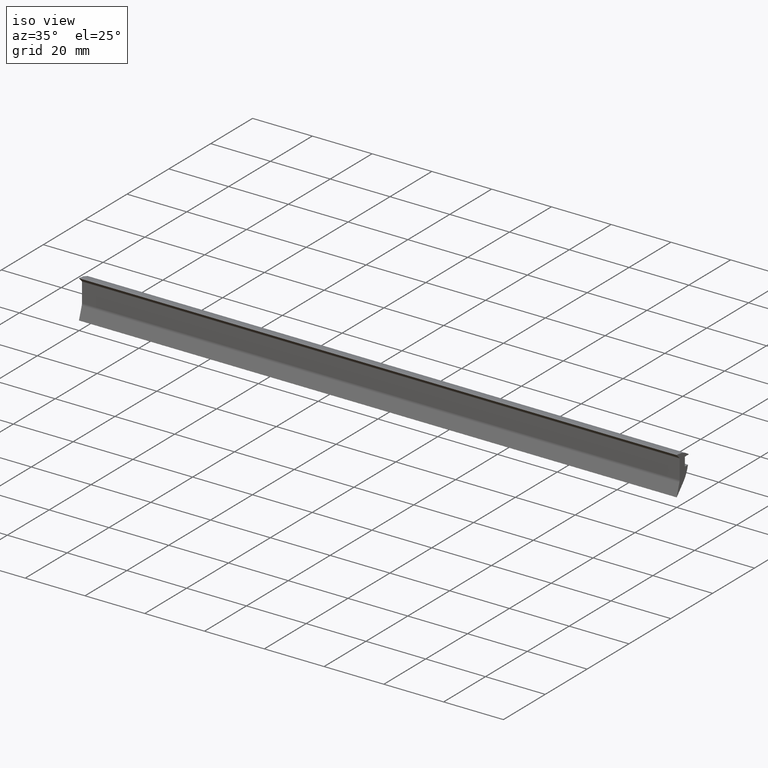
[diagram: clean part render]
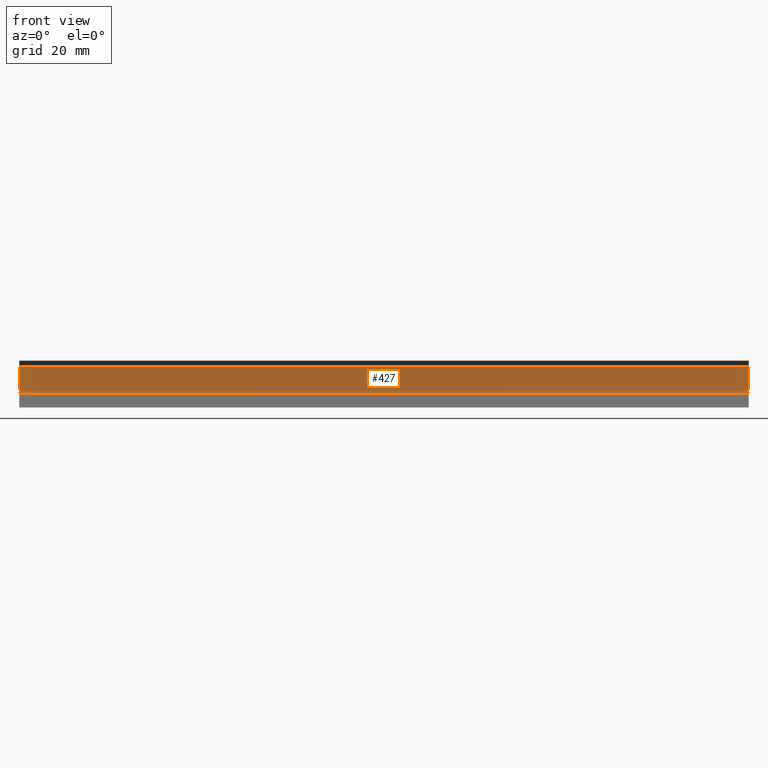
[diagram: tour spotlight — one face highlighted and labeled with its STEP entity id]
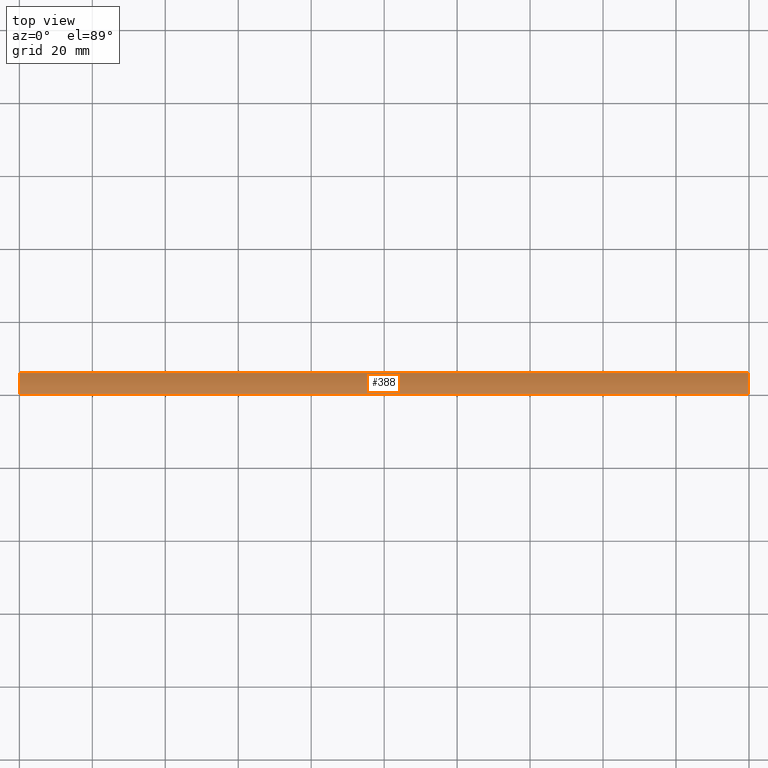
[diagram: tour spotlight — one face highlighted and labeled with its STEP entity id]
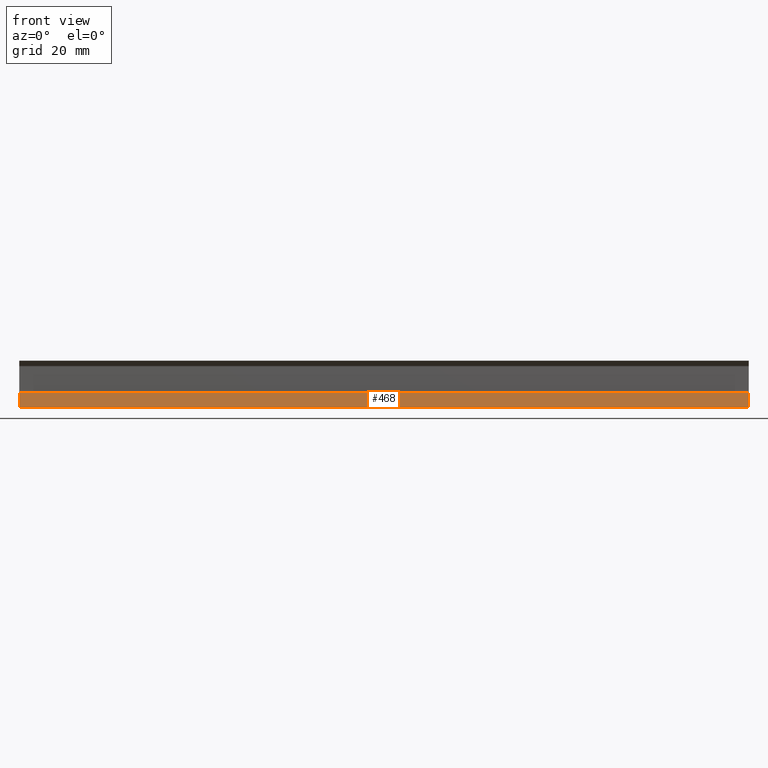
[diagram: tour spotlight — one face highlighted and labeled with its STEP entity id]
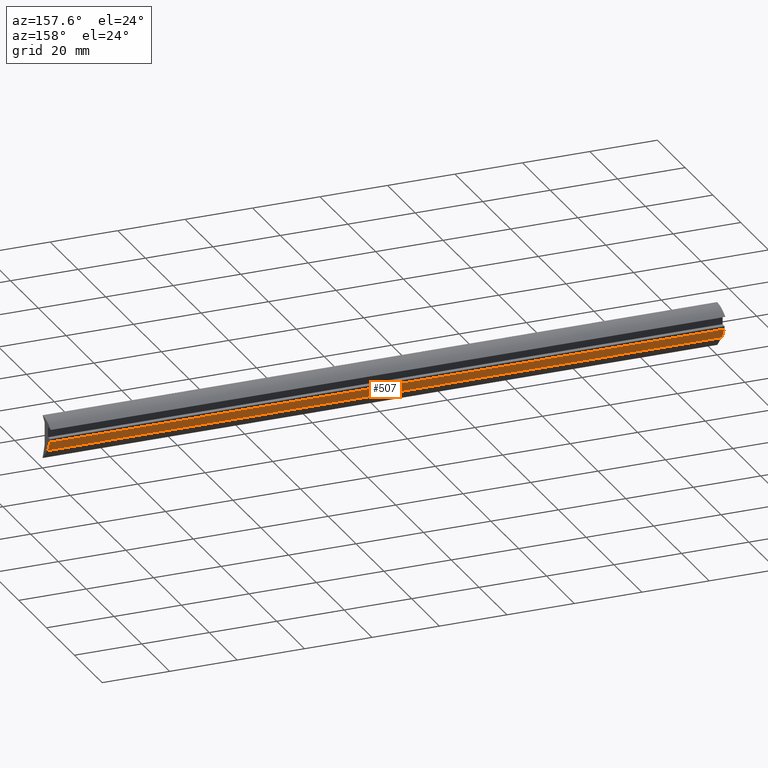
[diagram: tour spotlight — one face highlighted and labeled with its STEP entity id]
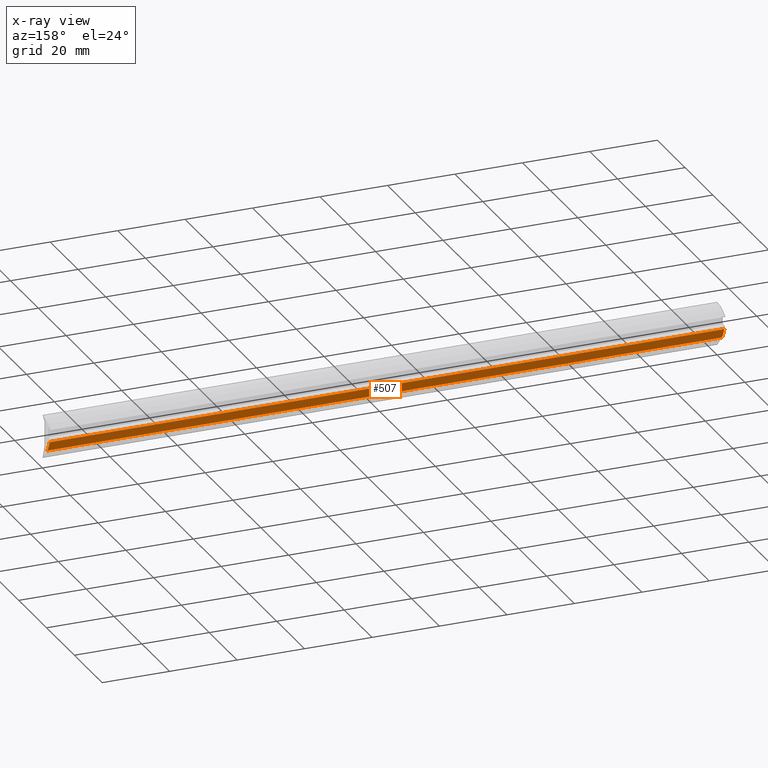
[diagram: x-ray of the same camera — body ghosted, this tour face saturated]
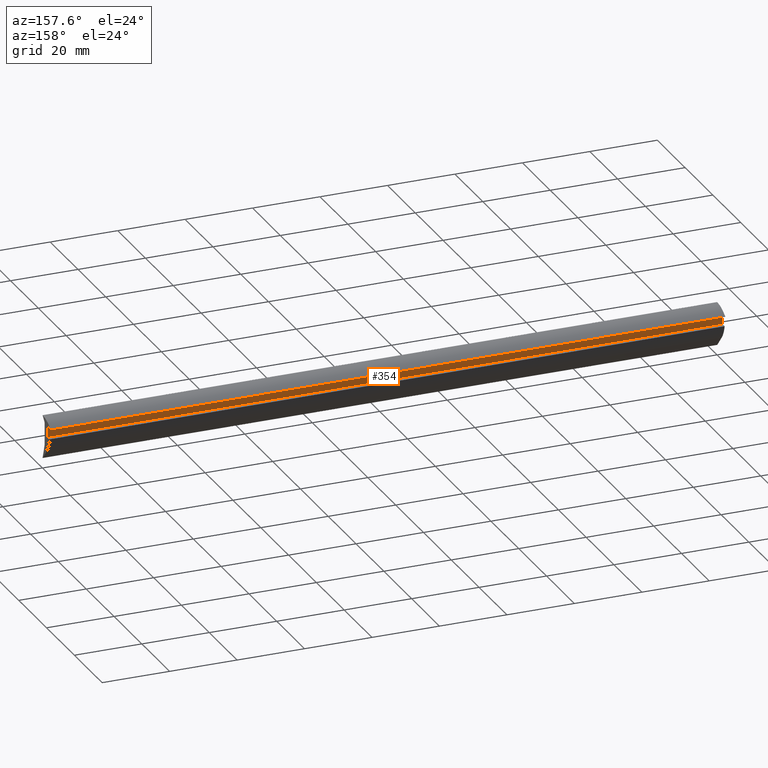
[diagram: tour spotlight — one face highlighted and labeled with its STEP entity id]
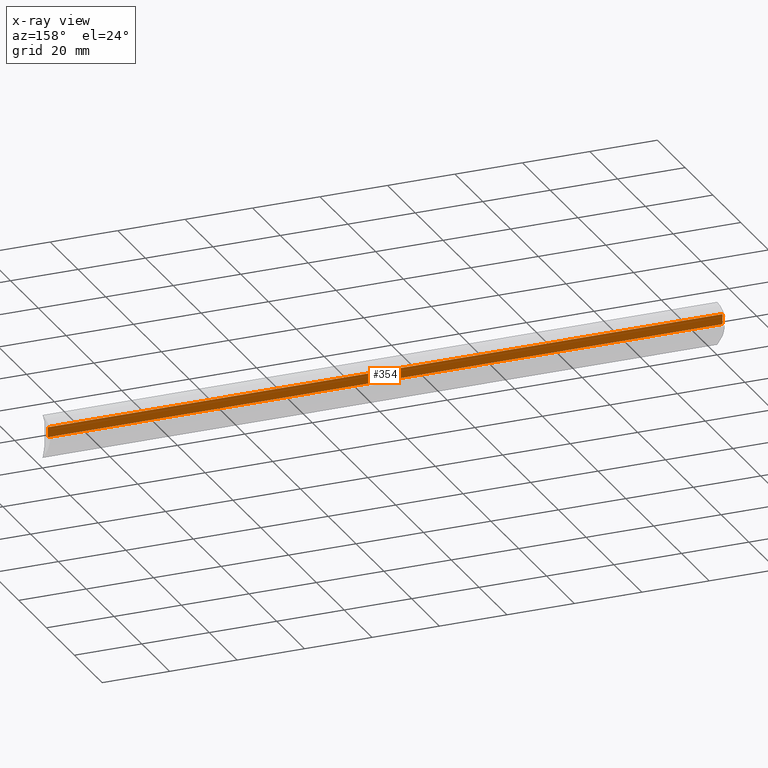
[diagram: x-ray of the same camera — body ghosted, this tour face saturated]
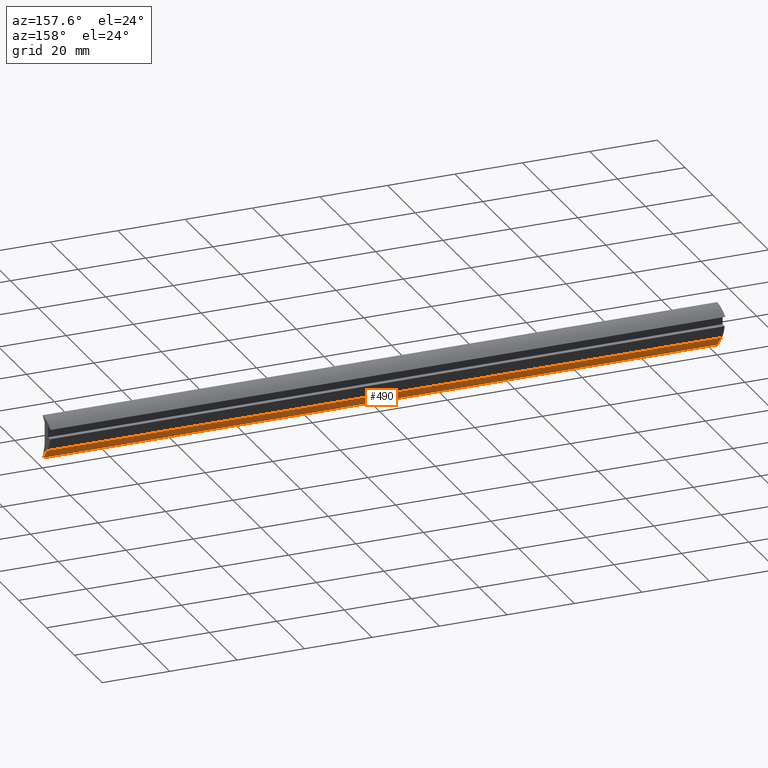
[diagram: tour spotlight — one face highlighted and labeled with its STEP entity id]
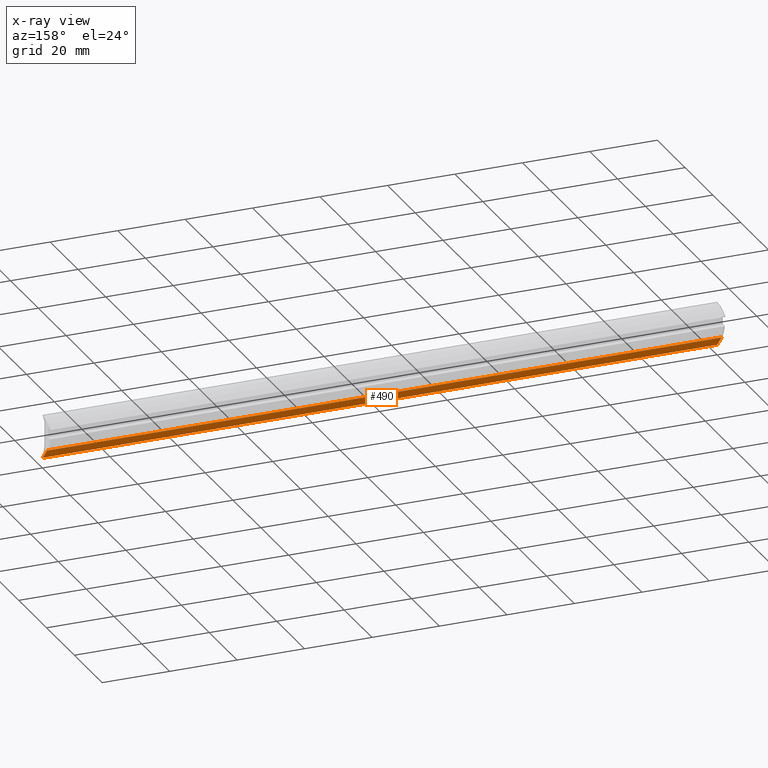
[diagram: x-ray of the same camera — body ghosted, this tour face saturated]
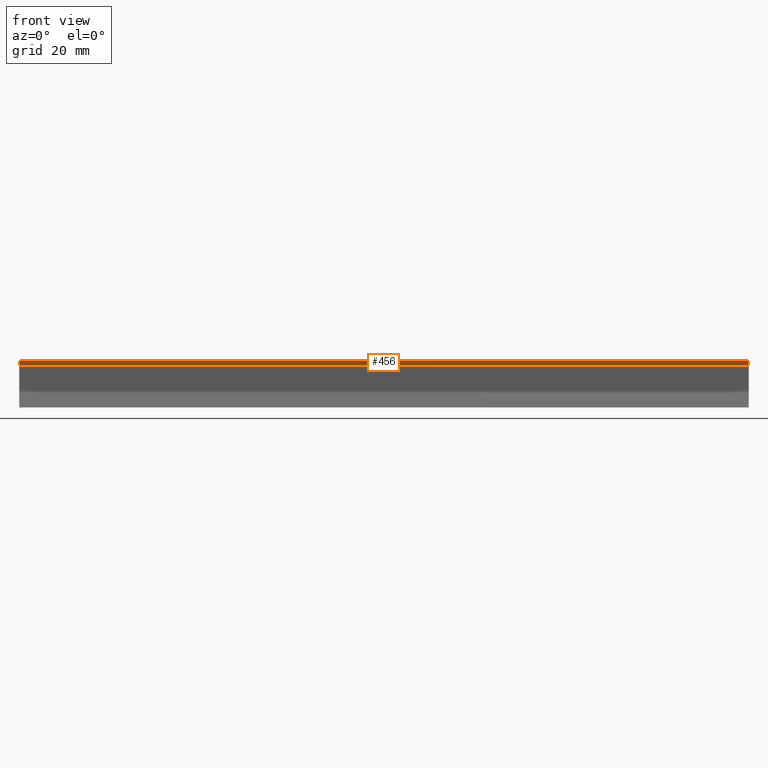
[diagram: tour spotlight — one face highlighted and labeled with its STEP entity id]
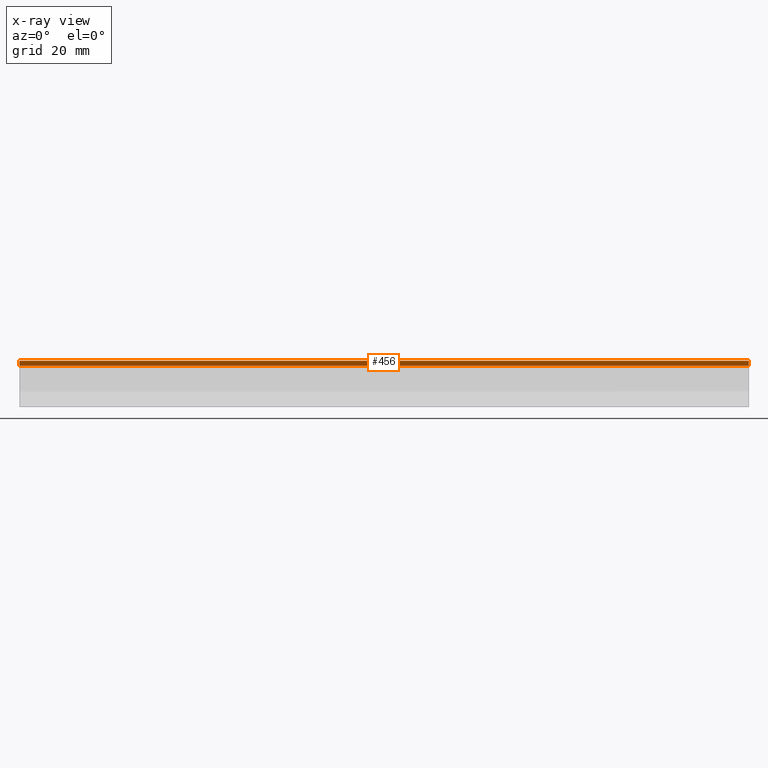
[diagram: x-ray of the same camera — body ghosted, this tour face saturated]
A machine part: a face-by-face anatomy tour. The part has 18 B-rep faces; the first image is the clean iso view, then the 7 largest visible faces are spotlighted one at a time (largest first), each with its STEP entity span.

Face 1 — front view, entity #427. In plain terms, the highlighted planar face has unit normal (0, -1, 0).
Definition (entity closure, byte-faithful):
#109=CARTESIAN_POINT('',(199.954953097465960,1.424986818330675,11.112900576339499));
#110=VERTEX_POINT('',#109);
#118=CARTESIAN_POINT('',(199.954953097465960,1.424986818330675,4.644562677862806));
#119=VERTEX_POINT('',#118);
#120=CARTESIAN_POINT('',(199.954953097465960,1.424986818330675,4.644562677862806));
#121=DIRECTION('',(0.0,0.0,1.0));
#122=VECTOR('',#121,6.468337898476692);
#123=LINE('',#120,#122);
#124=EDGE_CURVE('',#119,#110,#123,.T.);
#289=CARTESIAN_POINT('',(-0.045046902534030,1.424986818330675,4.644562677862819));
#290=VERTEX_POINT('',#289);
#298=CARTESIAN_POINT('',(-0.045046902534030,1.424986818330675,11.112900576339511));
#299=VERTEX_POINT('',#298);
#300=CARTESIAN_POINT('',(-0.045046902534030,1.424986818330675,4.644562677862819));
#301=DIRECTION('',(0.0,0.0,1.0));
#302=VECTOR('',#301,6.468337898476690);
#303=LINE('',#300,#302);
#304=EDGE_CURVE('',#290,#299,#303,.T.);
#395=CARTESIAN_POINT('',(199.954953097465960,1.424986818330675,4.644562677862806));
#396=DIRECTION('',(-1.0,0.0,0.0));
#397=VECTOR('',#396,200.0);
#398=LINE('',#395,#397);
#399=EDGE_CURVE('',#119,#290,#398,.T.);
#411=CARTESIAN_POINT('',(-10.045046902534031,1.424986818330675,4.321145782938985));
#412=DIRECTION('',(0.0,-1.0,0.0));
#413=DIRECTION('',(1.0,0.0,0.0));
#414=AXIS2_PLACEMENT_3D('',#411,#412,#413);
#415=PLANE('',#414);
#416=ORIENTED_EDGE('',*,*,#124,.T.);
#417=CARTESIAN_POINT('',(199.954953097465960,1.424986818330675,11.112900576339499));
#418=DIRECTION('',(-1.0,0.0,0.0));
#419=VECTOR('',#418,200.0);
#420=LINE('',#417,#419);
#421=EDGE_CURVE('',#110,#299,#420,.T.);
#422=ORIENTED_EDGE('',*,*,#421,.T.);
#423=ORIENTED_EDGE('',*,*,#304,.F.);
#424=ORIENTED_EDGE('',*,*,#399,.F.);
#425=EDGE_LOOP('',(#416,#422,#423,#424));
#426=FACE_OUTER_BOUND('',#425,.T.);
#427=ADVANCED_FACE('',(#426),#415,.T.);

Face 2 — top view, entity #388. In plain terms, the highlighted cylindrical surface (partial cylindrical patch) has radius 10.0886 mm, axis along (-1, 0, 0).
Definition (entity closure, byte-faithful):
#7=CARTESIAN_POINT('',(199.954953097465960,0.048149271488415,12.818474437844795));
#8=VERTEX_POINT('',#7);
#18=CARTESIAN_POINT('',(-0.045046902534029,0.047221813609371,12.818483040366013));
#19=VERTEX_POINT('',#18);
#91=CARTESIAN_POINT('',(199.954953097465960,5.924986818330687,10.794373554709134));
#92=VERTEX_POINT('',#91);
#93=CARTESIAN_POINT('',(199.954953097465960,-0.138986082328844,2.731592794589620));
#94=DIRECTION('',(1.0,0.0,-6.123234E-017));
#95=DIRECTION('',(6.123234E-017,0.0,1.0));
#96=AXIS2_PLACEMENT_3D('',#93,#94,#95);
#97=CIRCLE('',#96,10.088617394156966);
#98=EDGE_CURVE('',#92,#8,#97,.T.);
#215=CARTESIAN_POINT('',(-0.045046902534030,5.924986818330687,10.794373554709146));
#216=VERTEX_POINT('',#215);
#217=CARTESIAN_POINT('',(-0.045046902534030,-0.138986082328844,2.731592794589633));
#218=DIRECTION('',(1.0,0.0,-6.123234E-017));
#219=DIRECTION('',(6.123234E-017,0.0,1.0));
#220=AXIS2_PLACEMENT_3D('',#217,#218,#219);
#221=CIRCLE('',#220,10.088617394156966);
#222=EDGE_CURVE('',#216,#19,#221,.T.);
#362=CARTESIAN_POINT('',(199.954953097465960,5.924986818330676,10.794373554709139));
#363=DIRECTION('',(-1.0,0.0,0.0));
#364=VECTOR('',#363,200.0);
#365=LINE('',#362,#364);
#366=EDGE_CURVE('',#92,#216,#365,.T.);
#372=CARTESIAN_POINT('',(199.954953107465970,-0.138986082328844,2.731592794589620));
#373=DIRECTION('',(-1.0,0.0,6.123234E-017));
#374=DIRECTION('',(6.123234E-017,0.0,1.0));
#375=AXIS2_PLACEMENT_3D('',#372,#373,#374);
#376=CYLINDRICAL_SURFACE('',#375,10.088617394156966);
#377=ORIENTED_EDGE('',*,*,#222,.T.);
#378=CARTESIAN_POINT('',(-0.045046902534001,0.048149271488415,12.818474437844808));
#379=DIRECTION('',(1.0,0.0,0.0));
#380=VECTOR('',#379,199.999999999999970);
#381=LINE('',#378,#380);
#382=EDGE_CURVE('',#19,#8,#381,.T.);
#383=ORIENTED_EDGE('',*,*,#382,.T.);
#384=ORIENTED_EDGE('',*,*,#98,.F.);
#385=ORIENTED_EDGE('',*,*,#366,.T.);
#386=EDGE_LOOP('',(#377,#383,#384,#385));
#387=FACE_OUTER_BOUND('',#386,.T.);
#388=ADVANCED_FACE('',(#387),#376,.T.);

Face 3 — front view, entity #468. In plain terms, the highlighted planar face has unit normal (0, -0.9487, 0.3162).
Definition (entity closure, byte-faithful):
#51=CARTESIAN_POINT('',(-0.045046902534030,8.881784E-016,0.045046902534030));
#52=VERTEX_POINT('',#51);
#68=CARTESIAN_POINT('',(199.954953097465960,8.881784E-016,0.045046902534018));
#69=VERTEX_POINT('',#68);
#77=CARTESIAN_POINT('',(-0.045046902534030,8.881784E-016,0.045046902534030));
#78=DIRECTION('',(1.0,0.0,0.0));
#79=VECTOR('',#78,200.0);
#80=LINE('',#77,#79);
#81=EDGE_CURVE('',#52,#69,#80,.T.);
#126=CARTESIAN_POINT('',(199.954953097465960,1.322353414431703,4.012107145829130));
#127=VERTEX_POINT('',#126);
#135=CARTESIAN_POINT('',(199.954953097465960,0.0,0.045046902534018));
#136=DIRECTION('',(0.0,0.316227766016838,0.948683298050514));
#137=VECTOR('',#136,4.181648661304757);
#138=LINE('',#135,#137);
#139=EDGE_CURVE('',#69,#127,#138,.T.);
#281=CARTESIAN_POINT('',(-0.045046902534030,1.322353414431703,4.012107145829142));
#282=VERTEX_POINT('',#281);
#283=CARTESIAN_POINT('',(-0.045046902534030,0.0,0.045046902534030));
#284=DIRECTION('',(5.807788E-017,0.316227766016838,0.948683298050514));
#285=VECTOR('',#284,4.181648661304757);
#286=LINE('',#283,#285);
#287=EDGE_CURVE('',#52,#282,#286,.T.);
#402=CARTESIAN_POINT('',(199.954953097465960,1.322353414431703,4.012107145829130));
#403=DIRECTION('',(-1.0,0.0,0.0));
#404=VECTOR('',#403,200.0);
#405=LINE('',#402,#404);
#406=EDGE_CURVE('',#127,#282,#405,.T.);
#457=CARTESIAN_POINT('',(200.466798134112080,-0.075013181669325,-0.179992642473957));
#458=DIRECTION('',(1.936337E-017,-0.948683298050514,0.316227766016838));
#459=DIRECTION('',(5.809010E-017,0.316227766016838,0.948683298050514));
#460=AXIS2_PLACEMENT_3D('',#457,#458,#459);
#461=PLANE('',#460);
#462=ORIENTED_EDGE('',*,*,#287,.F.);
#463=ORIENTED_EDGE('',*,*,#81,.T.);
#464=ORIENTED_EDGE('',*,*,#139,.T.);
#465=ORIENTED_EDGE('',*,*,#406,.T.);
#466=EDGE_LOOP('',(#462,#463,#464,#465));
#467=FACE_OUTER_BOUND('',#466,.T.);
#468=ADVANCED_FACE('',(#467),#461,.T.);

Face 4 — auxiliary view, entity #507. An x-ray twin of the same camera follows (body ghosted, this face saturated) — the face is partly hidden behind the body. In plain terms, the highlighted cylindrical surface (edge-blend (fillet) strip) has radius 8.5524 mm, axis along (-1, 0, 0).
Definition (entity closure, byte-faithful):
#151=CARTESIAN_POINT('',(199.954953097465960,3.260110596891967,3.492946573928418));
#152=VERTEX_POINT('',#151);
#159=CARTESIAN_POINT('',(199.954953097465960,5.116007533023849,6.770768932189687));
#160=VERTEX_POINT('',#159);
#161=CARTESIAN_POINT('',(199.954953097465960,-3.071482191688734,9.242196540021341));
#162=DIRECTION('',(1.0,0.0,-6.123234E-017));
#163=DIRECTION('',(6.123234E-017,0.0,1.0));
#164=AXIS2_PLACEMENT_3D('',#161,#162,#163);
#165=CIRCLE('',#164,8.552364726379867);
#166=EDGE_CURVE('',#152,#160,#165,.T.);
#248=CARTESIAN_POINT('',(-0.045046902534030,5.116007533023849,6.770768932189699));
#249=VERTEX_POINT('',#248);
#256=CARTESIAN_POINT('',(-0.045046902534030,3.260110596891967,3.492946573928430));
#257=VERTEX_POINT('',#256);
#258=CARTESIAN_POINT('',(-0.045046902534030,-3.071482191688734,9.242196540021354));
#259=DIRECTION('',(1.0,0.0,-6.123234E-017));
#260=DIRECTION('',(6.123234E-017,0.0,1.0));
#261=AXIS2_PLACEMENT_3D('',#258,#259,#260);
#262=CIRCLE('',#261,8.552364726379867);
#263=EDGE_CURVE('',#257,#249,#262,.T.);
#482=CARTESIAN_POINT('',(199.954953097465960,3.260110596891967,3.492946573928418));
#483=DIRECTION('',(-1.0,0.0,0.0));
#484=VECTOR('',#483,200.0);
#485=LINE('',#482,#484);
#486=EDGE_CURVE('',#152,#257,#485,.T.);
#491=CARTESIAN_POINT('',(199.954953107465970,-3.071482191688734,9.242196540021341));
#492=DIRECTION('',(-1.0,0.0,6.123234E-017));
#493=DIRECTION('',(6.123234E-017,0.0,1.0));
#494=AXIS2_PLACEMENT_3D('',#491,#492,#493);
#495=CYLINDRICAL_SURFACE('',#494,8.552364726379867);
#496=ORIENTED_EDGE('',*,*,#486,.T.);
#497=ORIENTED_EDGE('',*,*,#263,.T.);
#498=CARTESIAN_POINT('',(199.954953097465960,5.116007533023849,6.770768932189687));
#499=DIRECTION('',(-1.0,0.0,0.0));
#500=VECTOR('',#499,200.0);
#501=LINE('',#498,#500);
#502=EDGE_CURVE('',#160,#249,#501,.T.);
#503=ORIENTED_EDGE('',*,*,#502,.F.);
#504=ORIENTED_EDGE('',*,*,#166,.F.);
#505=EDGE_LOOP('',(#496,#497,#503,#504));
#506=FACE_OUTER_BOUND('',#505,.T.);
#507=ADVANCED_FACE('',(#506),#495,.T.);

Face 5 — auxiliary view, entity #354. An x-ray twin of the same camera follows (body ghosted, this face saturated) — the face is partly hidden behind the body. In plain terms, the highlighted planar face has unit normal (0, -1, 0).
Definition (entity closure, byte-faithful):
#176=CARTESIAN_POINT('',(199.954953097465960,3.924986818330675,7.794373554709138));
#177=VERTEX_POINT('',#176);
#184=CARTESIAN_POINT('',(199.954953097465960,3.924986818330675,10.794373554709139));
#185=VERTEX_POINT('',#184);
#186=CARTESIAN_POINT('',(199.954953097465960,3.924986818330675,7.794373554709138));
#187=DIRECTION('',(0.0,0.0,1.0));
#188=VECTOR('',#187,3.000000000000001);
#189=LINE('',#186,#188);
#190=EDGE_CURVE('',#177,#185,#189,.T.);
#224=CARTESIAN_POINT('',(-0.045046902534030,3.924986818330675,10.794373554709152));
#225=VERTEX_POINT('',#224);
#232=CARTESIAN_POINT('',(-0.045046902534030,3.924986818330675,7.794373554709151));
#233=VERTEX_POINT('',#232);
#234=CARTESIAN_POINT('',(-0.045046902534030,3.924986818330675,7.794373554709151));
#235=DIRECTION('',(0.0,0.0,1.0));
#236=VECTOR('',#235,2.999999999999999);
#237=LINE('',#234,#236);
#238=EDGE_CURVE('',#233,#225,#237,.T.);
#329=CARTESIAN_POINT('',(199.954953097465960,3.924986818330675,7.794373554709138));
#330=DIRECTION('',(-1.0,0.0,0.0));
#331=VECTOR('',#330,200.0);
#332=LINE('',#329,#331);
#333=EDGE_CURVE('',#177,#233,#332,.T.);
#338=CARTESIAN_POINT('',(-10.045046902534031,3.924986818330675,7.644373554709151));
#339=DIRECTION('',(0.0,-1.0,0.0));
#340=DIRECTION('',(1.0,0.0,0.0));
#341=AXIS2_PLACEMENT_3D('',#338,#339,#340);
#342=PLANE('',#341);
#343=ORIENTED_EDGE('',*,*,#333,.T.);
#344=ORIENTED_EDGE('',*,*,#238,.T.);
#345=CARTESIAN_POINT('',(199.954953097465960,3.924986818330675,10.794373554709139));
#346=DIRECTION('',(-1.0,0.0,0.0));
#347=VECTOR('',#346,200.0);
#348=LINE('',#345,#347);
#349=EDGE_CURVE('',#185,#225,#348,.T.);
#350=ORIENTED_EDGE('',*,*,#349,.F.);
#351=ORIENTED_EDGE('',*,*,#190,.F.);
#352=EDGE_LOOP('',(#343,#344,#350,#351));
#353=FACE_OUTER_BOUND('',#352,.T.);
#354=ADVANCED_FACE('',(#353),#342,.F.);

Face 6 — auxiliary view, entity #490. An x-ray twin of the same camera follows (body ghosted, this face saturated) — the face is partly hidden behind the body. In plain terms, the highlighted planar face has unit normal (0, -0.7403, 0.6722).
Definition (entity closure, byte-faithful):
#142=CARTESIAN_POINT('',(199.954953097465960,0.084450785399607,-0.004376534305630));
#143=VERTEX_POINT('',#142);
#151=CARTESIAN_POINT('',(199.954953097465960,3.260110596891967,3.492946573928418));
#152=VERTEX_POINT('',#151);
#153=CARTESIAN_POINT('',(199.954953097465960,0.084450785399607,-0.004376534305630));
#154=DIRECTION('',(0.0,0.672240970776105,0.740332409941643));
#155=VECTOR('',#154,4.723990279595793);
#156=LINE('',#153,#155);
#157=EDGE_CURVE('',#143,#152,#156,.T.);
#256=CARTESIAN_POINT('',(-0.045046902534030,3.260110596891967,3.492946573928430));
#257=VERTEX_POINT('',#256);
#265=CARTESIAN_POINT('',(-0.045046902534030,0.084450785399607,-0.004376534305617));
#266=VERTEX_POINT('',#265);
#267=CARTESIAN_POINT('',(-0.045046902534030,0.084450785399607,-0.004376534305617));
#268=DIRECTION('',(4.553475E-017,0.672240970776105,0.740332409941643));
#269=VECTOR('',#268,4.723990279595793);
#270=LINE('',#267,#269);
#271=EDGE_CURVE('',#266,#257,#270,.T.);
#469=CARTESIAN_POINT('',(209.954953097465960,-0.074332205175010,-0.179242689717332));
#470=DIRECTION('',(4.116289E-017,-0.740332409941643,0.672240970776105));
#471=DIRECTION('',(4.533229E-017,0.672240970776105,0.740332409941643));
#472=AXIS2_PLACEMENT_3D('',#469,#470,#471);
#473=PLANE('',#472);
#474=ORIENTED_EDGE('',*,*,#157,.F.);
#475=CARTESIAN_POINT('',(199.954953097465960,0.084450785399607,-0.004376534305630));
#476=DIRECTION('',(-1.0,0.0,0.0));
#477=VECTOR('',#476,200.0);
#478=LINE('',#475,#477);
#479=EDGE_CURVE('',#143,#266,#478,.T.);
#480=ORIENTED_EDGE('',*,*,#479,.T.);
#481=ORIENTED_EDGE('',*,*,#271,.T.);
#482=CARTESIAN_POINT('',(199.954953097465960,3.260110596891967,3.492946573928418));
#483=DIRECTION('',(-1.0,0.0,0.0));
#484=VECTOR('',#483,200.0);
#485=LINE('',#482,#484);
#486=EDGE_CURVE('',#152,#257,#485,.T.);
#487=ORIENTED_EDGE('',*,*,#486,.F.);
#488=EDGE_LOOP('',(#474,#480,#481,#487));
#489=FACE_OUTER_BOUND('',#488,.T.);
#490=ADVANCED_FACE('',(#489),#473,.F.);

Face 7 — front view, entity #456. An x-ray twin of the same camera follows (body ghosted, this face saturated) — the face is partly hidden behind the body. In plain terms, the highlighted planar face has unit normal (-0, -0.7071, -0.7071).
Definition (entity closure, byte-faithful):
#9=CARTESIAN_POINT('',(199.954953097465960,0.011866474550043,12.733127701306680));
#10=VERTEX_POINT('',#9);
#26=CARTESIAN_POINT('',(-0.045046902534029,0.011866474550043,12.733127701306685));
#27=VERTEX_POINT('',#26);
#35=CARTESIAN_POINT('',(199.954953097465960,0.011866474550043,12.733127701306673));
#36=DIRECTION('',(-1.0,0.0,0.0));
#37=VECTOR('',#36,200.0);
#38=LINE('',#35,#37);
#39=EDGE_CURVE('',#10,#27,#38,.T.);
#101=CARTESIAN_POINT('',(199.954953097465960,1.278540208923952,11.466453966932770));
#102=VERTEX_POINT('',#101);
#103=CARTESIAN_POINT('',(199.954953097465960,1.278540208923952,11.466453966932770));
#104=DIRECTION('',(0.0,-0.707106781186547,0.707106781186548));
#105=VECTOR('',#104,1.791347174253358);
#106=LINE('',#103,#105);
#107=EDGE_CURVE('',#102,#10,#106,.T.);
#206=CARTESIAN_POINT('',(-0.045046902534029,1.278540208923952,11.466453966932782));
#207=VERTEX_POINT('',#206);
#208=CARTESIAN_POINT('',(-0.045046902534029,1.278540208923950,11.466453966932781));
#209=DIRECTION('',(4.260918E-017,-0.707106781186547,0.707106781186548));
#210=VECTOR('',#209,1.791347174253353);
#211=LINE('',#208,#210);
#212=EDGE_CURVE('',#207,#27,#211,.T.);
#434=CARTESIAN_POINT('',(199.954953097465960,1.278540208923952,11.466453966932770));
#435=DIRECTION('',(-1.0,0.0,0.0));
#436=VECTOR('',#435,200.0);
#437=LINE('',#434,#436);
#438=EDGE_CURVE('',#102,#207,#437,.T.);
#445=CARTESIAN_POINT('',(209.954953097465960,1.341873895642646,11.403120280214072));
#446=DIRECTION('',(-4.329780E-017,-0.707106781186548,-0.707106781186547));
#447=DIRECTION('',(4.329780E-017,-0.707106781186547,0.707106781186548));
#448=AXIS2_PLACEMENT_3D('',#445,#446,#447);
#449=PLANE('',#448);
#450=ORIENTED_EDGE('',*,*,#107,.T.);
#451=ORIENTED_EDGE('',*,*,#39,.T.);
#452=ORIENTED_EDGE('',*,*,#212,.F.);
#453=ORIENTED_EDGE('',*,*,#438,.F.);
#454=EDGE_LOOP('',(#450,#451,#452,#453));
#455=FACE_OUTER_BOUND('',#454,.T.);
#456=ADVANCED_FACE('',(#455),#449,.T.);